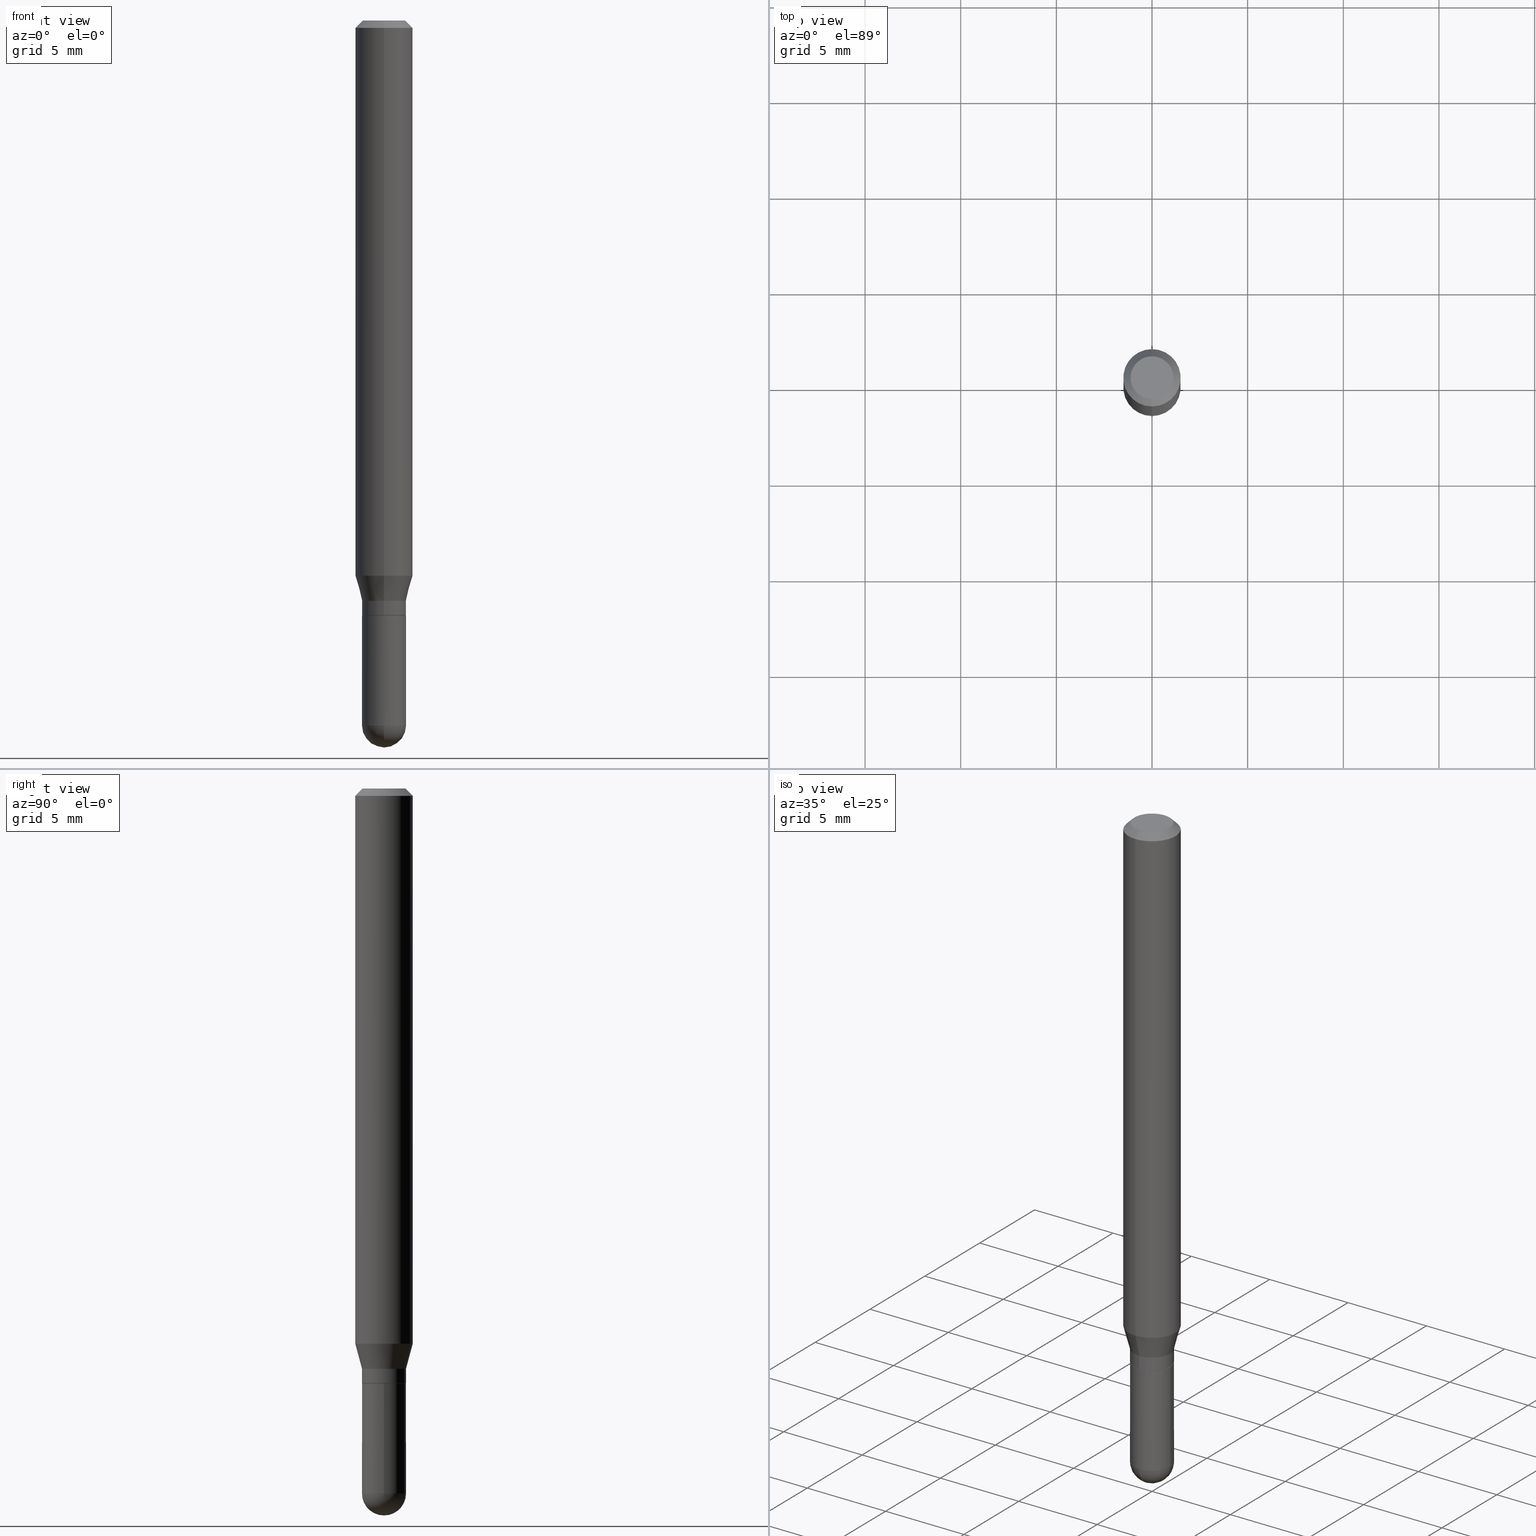
[diagram: canonical four-view strip — front | top / right | iso, engineering-drawing reading convention]
A machine part, canonical four-view strip (front | top / right | iso — engineering-drawing reading convention). The complete STEP part file that produces these views, byte-faithful:
ISO-10303-21;
HEADER;
FILE_DESCRIPTION (( 'STEP AP203' ),
    '1' );
FILE_NAME ('01992.STEP',
    '2024-03-07T19:52:43',
    ( '' ),
    ( '' ),
    'SwSTEP 2.0',
    'SolidWorks 2023',
    '' );
FILE_SCHEMA (( 'CONFIG_CONTROL_DESIGN' ));
ENDSEC;

DATA;
#1 = CONICAL_SURFACE ( 'NONE', #456, 0.05904999999999999832, 0.7853981633974483900 ) ;
#2 = DIRECTION ( 'NONE',  ( -2.445400630016403111E-29, 3.491578970997118229E-15, 1.000000000000000000 ) ) ;
#3 = APPROVAL_STATUS ( 'not_yet_approved' ) ;
#4 = DIRECTION ( 'NONE',  ( -2.445468806185136597E-29, 3.491481338843145583E-15, 1.000000000000000000 ) ) ;
#5 = CYLINDRICAL_SURFACE ( 'NONE', #428, 0.05904999999999999832 ) ;
#6 = PERSON_AND_ORGANIZATION ( #386, #70 ) ;
#7 = EDGE_CURVE ( 'NONE', #460, #216, #26, .T. ) ;
#8 = CARTESIAN_POINT ( 'NONE',  ( 2.992925831077075889E-29, -4.273343502603372230E-15, -1.223899999999999988 ) ) ;
#9 = PRODUCT_DEFINITION ( 'UNKNOWN', '', #458, #511 ) ;
#10 = CARTESIAN_POINT ( 'NONE',  ( 2.794565450606458649E-29, -3.990121635139656722E-15, -1.142784301395928459 ) ) ;
#11 = ORIENTED_EDGE ( 'NONE', *, *, #158, .T. ) ;
#12 = LINE ( 'NONE', #291, #50 ) ;
#13 = EDGE_CURVE ( 'NONE', #295, #216, #162, .T. ) ;
#14 = ORIENTED_EDGE ( 'NONE', *, *, #416, .T. ) ;
#15 = AXIS2_PLACEMENT_3D ( 'NONE', #8, #199, #320 ) ;
#16 = CIRCLE ( 'NONE', #205, 0.04529999999999999999 ) ;
#17 = DIRECTION ( 'NONE',  ( -2.445400630016402831E-29, 3.491578970997118229E-15, 1.000000000000000000 ) ) ;
#18 = EDGE_CURVE ( 'NONE', #465, #371, #159, .T. ) ;
#19 = EDGE_LOOP ( 'NONE', ( #290, #347, #226, #441 ) ) ;
#20 = DIRECTION ( 'NONE',  ( -2.445400630016402831E-29, 3.491578970997118229E-15, 1.000000000000000000 ) ) ;
#21 = EDGE_LOOP ( 'NONE', ( #35, #242, #506, #259 ) ) ;
#22 = DIRECTION ( 'NONE',  ( -6.982962677686265922E-15, -1.000000000000000000, 4.626330217890369336E-15 ) ) ;
#23 = EDGE_LOOP ( 'NONE', ( #264, #292, #11, #322 ) ) ;
#24 = AXIS2_PLACEMENT_3D ( 'NONE', #85, #236, #155 ) ;
#25 = DIRECTION ( 'NONE',  ( -6.982962677686265133E-15, -1.000000000000000000, 3.015284761218829434E-15 ) ) ;
#26 = CIRCLE ( 'NONE', #282, 0.04530000000000006244 ) ;
#27 = AXIS2_PLACEMENT_3D ( 'NONE', #335, #493, #140 ) ;
#28 = EDGE_LOOP ( 'NONE', ( #185, #220, #14, #492 ) ) ;
#29 = APPROVAL_PERSON_ORGANIZATION ( #314, #135, #324 ) ;
#30 = CARTESIAN_POINT ( 'NONE',  ( 3.544012240723413228E-29, -5.070988776393773069E-15, -1.450800000000000090 ) ) ;
#31 = ADVANCED_FACE ( 'NONE', ( #425 ), #105, .T. ) ;
#32 = EDGE_LOOP ( 'NONE', ( #151, #298 ) ) ;
#33 = APPLICATION_CONTEXT ( 'configuration controlled 3d designs of mechanical parts and assemblies' ) ;
#34 = CARTESIAN_POINT ( 'NONE',  ( 3.668100945024610009E-31, -5.237368456495685873E-17, -0.01500000000000002373 ) ) ;
#35 = ORIENTED_EDGE ( 'NONE', *, *, #196, .T. ) ;
#36 = CARTESIAN_POINT ( 'NONE',  ( -0.04530000000000000693, 3.218758592993254334E-16, -2.228277595885472564E-30 ) ) ;
#37 = CONICAL_SURFACE ( 'NONE', #237, 0.05904999999999999832, 0.7853981633974483900 ) ;
#38 = DIRECTION ( 'NONE',  ( -6.982962677686266711E-15, -1.000000000000000000, 3.048937492928865273E-15 ) ) ;
#39 = ADVANCED_FACE ( 'NONE', ( #443 ), #244, .F. ) ;
#40 = CARTESIAN_POINT ( 'NONE',  ( 2.920052892302586962E-29, -4.169294449267658946E-15, -1.194099999999999939 ) ) ;
#41 = CALENDAR_DATE ( 2024, 7, 3 ) ;
#42 = DIRECTION ( 'NONE',  ( 1.000000000000000000, -6.982962677686266711E-15, 4.876176775795936353E-29 ) ) ;
#43 = EDGE_CURVE ( 'NONE', #253, #91, #434, .T. ) ;
#44 = AXIS2_PLACEMENT_3D ( 'NONE', #10, #336, #22 ) ;
#45 = FACE_OUTER_BOUND ( 'NONE', #342, .T. ) ;
#46 = CC_DESIGN_APPROVAL ( #234, ( #108 ) ) ;
#47 = CARTESIAN_POINT ( 'NONE',  ( -3.536586717851222218E-16, -0.04404999999999999888, 1.299461114874193808E-16 ) ) ;
#48 = FACE_OUTER_BOUND ( 'NONE', #270, .T. ) ;
#49 = EDGE_CURVE ( 'NONE', #255, #371, #388, .T. ) ;
#50 = VECTOR ( 'NONE', #296, 39.37007874015748854 ) ;
#51 = DATE_AND_TIME ( #411, #313 ) ;
#52 = DIRECTION ( 'NONE',  ( -2.445400630016403111E-29, 3.491578970997118229E-15, 1.000000000000000000 ) ) ;
#53 = ORIENTED_EDGE ( 'NONE', *, *, #444, .T. ) ;
#54 = DATE_AND_TIME ( #41, #146 ) ;
#55 = ADVANCED_FACE ( 'NONE', ( #240 ), #393, .T. ) ;
#56 = CARTESIAN_POINT ( 'NONE',  ( -3.163282092991882303E-16, -0.04530000000000006244, 1.581685273861696722E-16 ) ) ;
#57 = DIRECTION ( 'NONE',  ( -2.445400630016403111E-29, 3.491578970997118229E-15, 1.000000000000000000 ) ) ;
#58 = EDGE_CURVE ( 'NONE', #109, #295, #480, .T. ) ;
#59 = ORIENTED_EDGE ( 'NONE', *, *, #450, .T. ) ;
#60 = AXIS2_PLACEMENT_3D ( 'NONE', #178, #64, #405 ) ;
#61 = CARTESIAN_POINT ( 'NONE',  ( 0.04530000000000000693, -3.163282092991879344E-16, 2.208908079435559539E-30 ) ) ;
#62 = VERTEX_POINT ( 'NONE', #47 ) ;
#63 = ORIENTED_EDGE ( 'NONE', *, *, #163, .T. ) ;
#64 = DIRECTION ( 'NONE',  ( -2.445400630016403111E-29, 3.491578970997118229E-15, 1.000000000000000000 ) ) ;
#65 = EDGE_LOOP ( 'NONE', ( #385, #399, #73, #404 ) ) ;
#66 = EDGE_CURVE ( 'NONE', #224, #177, #348, .T. ) ;
#67 = AXIS2_PLACEMENT_3D ( 'NONE', #238, #2, #317 ) ;
#68 = FACE_OUTER_BOUND ( 'NONE', #496, .T. ) ;
#69 = ORIENTED_EDGE ( 'NONE', *, *, #43, .T. ) ;
#70 = ORGANIZATION ( 'UNSPECIFIED', 'UNSPECIFIED', '' ) ;
#71 = CARTESIAN_POINT ( 'NONE',  ( 4.195754854663672017E-16, 0.05904999999999994975, -0.01500000000000023016 ) ) ;
#72 = EDGE_CURVE ( 'NONE', #104, #224, #455, .T. ) ;
#73 = ORIENTED_EDGE ( 'NONE', *, *, #251, .T. ) ;
#74 = DIRECTION ( 'NONE',  ( 1.000000000000000000, -6.982962677686266711E-15, 4.876176775795936353E-29 ) ) ;
#75 = EDGE_CURVE ( 'NONE', #216, #460, #330, .T. ) ;
#76 = CARTESIAN_POINT ( 'NONE',  ( 3.547886144013395202E-29, -5.065441126393634337E-15, -1.450799999999999645 ) ) ;
#77 = CARTESIAN_POINT ( 'NONE',  ( -3.163282092991584508E-16, -0.04530000000000435761, -1.223899999999999766 ) ) ;
#78 = AXIS2_PLACEMENT_3D ( 'NONE', #76, #4, #476 ) ;
#79 = CIRCLE ( 'NONE', #106, 0.05904999999999999832 ) ;
#80 = DIRECTION ( 'NONE',  ( -2.445400630016403111E-29, 3.491578970997118229E-15, 1.000000000000000000 ) ) ;
#81 = ADVANCED_FACE ( 'NONE', ( #169 ), #283, .T. ) ;
#82 = MECHANICAL_CONTEXT ( 'NONE', #33, 'mechanical' ) ;
#83 = CC_DESIGN_PERSON_AND_ORGANIZATION_ASSIGNMENT ( #285, #481, ( #9 ) ) ;
#84 = DIRECTION ( 'NONE',  ( 1.000000000000000000, 0.000000000000000000, 0.000000000000000000 ) ) ;
#85 = CARTESIAN_POINT ( 'NONE',  ( 3.544012240723413228E-29, -5.070988776393773069E-15, -1.450800000000000090 ) ) ;
#86 = VECTOR ( 'NONE', #209, 39.37007874015748143 ) ;
#87 = SECURITY_CLASSIFICATION_LEVEL ( 'unclassified' ) ;
#88 = LOCAL_TIME ( 14, 52, 43.00000000000000000, #475 ) ;
#89 = DIRECTION ( 'NONE',  ( -2.445400630016403111E-29, 3.491578970997118229E-15, 1.000000000000000000 ) ) ;
#90 = ADVANCED_FACE ( 'NONE', ( #45 ), #37, .T. ) ;
#91 = VERTEX_POINT ( 'NONE', #467 ) ;
#92 = COORDINATED_UNIVERSAL_TIME_OFFSET ( 5, 0, .BEHIND. ) ;
#93 = CARTESIAN_POINT ( 'NONE',  ( -3.128367279603147534E-16, -0.04480000000000427390, -1.224399999999999711 ) ) ;
#94 = EDGE_LOOP ( 'NONE', ( #415, #63, #333, #344 ) ) ;
#95 = CARTESIAN_POINT ( 'NONE',  ( 0.000000000000000000, 0.000000000000000000, 0.000000000000000000 ) ) ;
#96 = ORIENTED_EDGE ( 'NONE', *, *, #152, .F. ) ;
#97 = VECTOR ( 'NONE', #153, 39.37007874015748854 ) ;
#98 = COORDINATED_UNIVERSAL_TIME_OFFSET ( 5, 0, .BEHIND. ) ;
#99 = PLANE ( 'NONE',  #115 ) ;
#100 = ADVANCED_FACE ( 'NONE', ( #361 ), #5, .T. ) ;
#101 = DIRECTION ( 'NONE',  ( -2.445468806185136597E-29, 3.491481338843145583E-15, 1.000000000000000000 ) ) ;
#102 = ORIENTED_EDGE ( 'NONE', *, *, #215, .F. ) ;
#103 = CARTESIAN_POINT ( 'NONE',  ( 5.834222685010292817E-46, -8.330188922442390789E-32, -2.385794218500368520E-17 ) ) ;
#104 = VERTEX_POINT ( 'NONE', #440 ) ;
#105 = CONICAL_SURFACE ( 'NONE', #400, 0.04479999999999999954, 0.7853981633974739252 ) ;
#106 = AXIS2_PLACEMENT_3D ( 'NONE', #486, #57, #175 ) ;
#107 = CARTESIAN_POINT ( 'NONE',  ( -4.123439461173739834E-16, -0.05904999999999999832, 2.061777382373798353E-16 ) ) ;
#108 = SECURITY_CLASSIFICATION ( '', '', #87 ) ;
#109 = VERTEX_POINT ( 'NONE', #93 ) ;
#110 = CARTESIAN_POINT ( 'NONE',  ( 3.218758592993555581E-16, 0.04529999999999576726, -1.223899999999999988 ) ) ;
#111 = ORIENTED_EDGE ( 'NONE', *, *, #370, .T. ) ;
#112 = DIRECTION ( 'NONE',  ( 6.982962677686265922E-15, 1.000000000000000000, -3.505890868245046092E-15 ) ) ;
#113 = ORIENTED_EDGE ( 'NONE', *, *, #402, .T. ) ;
#114 = DIRECTION ( 'NONE',  ( 1.000000000000000000, -6.982962677686265922E-15, 4.883557194083112340E-29 ) ) ;
#115 = AXIS2_PLACEMENT_3D ( 'NONE', #252, #294, #451 ) ;
#116 = ORIENTED_EDGE ( 'NONE', *, *, #241, .T. ) ;
#117 = CYLINDRICAL_SURFACE ( 'NONE', #464, 0.04530000000000000693 ) ;
#118 = CARTESIAN_POINT ( 'NONE',  ( 2.994148531392083596E-29, -4.275089292088871279E-15, -1.224399999999999933 ) ) ;
#119 = MANIFOLD_SOLID_BREP ( 'Body-Move/Copy2[2]', #265 ) ;
#120 = CARTESIAN_POINT ( 'NONE',  ( 3.218758592993549171E-16, 0.04529999999999589216, -1.194100000000000161 ) ) ;
#121 = DIRECTION ( 'NONE',  ( -6.982962677686265922E-15, -1.000000000000000000, 6.030569522437688845E-15 ) ) ;
#122 = VECTOR ( 'NONE', #20, 39.37007874015748143 ) ;
#123 = DIRECTION ( 'NONE',  ( -2.445468806185136597E-29, 3.491481338843145583E-15, 1.000000000000000000 ) ) ;
#124 =( CONVERSION_BASED_UNIT ( 'INCH', #278 ) LENGTH_UNIT ( ) NAMED_UNIT ( #297 ) );
#125 = CARTESIAN_POINT ( 'NONE',  ( 2.994148531392083596E-29, -4.275089292088871279E-15, -1.224399999999999933 ) ) ;
#126 = APPROVAL_DATE_TIME ( #478, #135 ) ;
#127 = DIRECTION ( 'NONE',  ( -6.982962677686265133E-15, -1.000000000000000000, 3.015284761218829434E-15 ) ) ;
#128 = VECTOR ( 'NONE', #184, 39.37007874015748143 ) ;
#129 = ADVANCED_FACE ( 'NONE', ( #48 ), #340, .T. ) ;
#130 = DIRECTION ( 'NONE',  ( -2.445400630016403111E-29, 3.491578970997118229E-15, 1.000000000000000000 ) ) ;
#131 = ORIENTED_EDGE ( 'NONE', *, *, #145, .T. ) ;
#132 = MANIFOLD_SOLID_BREP ( 'Body-Move/Copy2[1]', #245 ) ;
#133 = DIRECTION ( 'NONE',  ( -6.982962677686266711E-15, -1.000000000000000000, 3.048937492928865273E-15 ) ) ;
#134 = FACE_OUTER_BOUND ( 'NONE', #65, .T. ) ;
#135 = APPROVAL ( #3, 'UNSPECIFIED' ) ;
#136 = ORIENTED_EDGE ( 'NONE', *, *, #66, .T. ) ;
#137 = AXIS2_PLACEMENT_3D ( 'NONE', #302, #431, #42 ) ;
#138 = PERSON_AND_ORGANIZATION ( #386, #70 ) ;
#139 = CARTESIAN_POINT ( 'NONE',  ( -0.04530000000000000693, -4.348329579537264718E-15, -1.450799999999999645 ) ) ;
#140 = DIRECTION ( 'NONE',  ( -6.982962677686265133E-15, -1.000000000000000000, 3.015284761218829434E-15 ) ) ;
#141 = LINE ( 'NONE', #327, #86 ) ;
#142 = ORIENTED_EDGE ( 'NONE', *, *, #18, .T. ) ;
#143 = AXIS2_PLACEMENT_3D ( 'NONE', #268, #276, #310 ) ;
#144 = DIRECTION ( 'NONE',  ( -6.982962677686265922E-15, -1.000000000000000000, 6.030569522437688845E-15 ) ) ;
#145 = EDGE_CURVE ( 'NONE', #371, #465, #79, .T. ) ;
#146 = LOCAL_TIME ( 14, 52, 43.00000000000000000, #391 ) ;
#147 = ORIENTED_EDGE ( 'NONE', *, *, #409, .T. ) ;
#148 = CYLINDRICAL_SURFACE ( 'NONE', #137, 0.04530000000000000693 ) ;
#149 = EDGE_LOOP ( 'NONE', ( #375, #102, #116, #131 ) ) ;
#150 = CARTESIAN_POINT ( 'NONE',  ( 0.04529999999999999999, -4.591297960578735035E-15, -1.224399999999999933 ) ) ;
#151 = ORIENTED_EDGE ( 'NONE', *, *, #58, .F. ) ;
#152 = EDGE_CURVE ( 'NONE', #261, #377, #16, .T. ) ;
#153 = DIRECTION ( 'NONE',  ( 1.839019923739603865E-15, 0.2588190451025254579, 0.9659258262890669799 ) ) ;
#154 = AXIS2_PLACEMENT_3D ( 'NONE', #223, #384, #463 ) ;
#155 = DIRECTION ( 'NONE',  ( 7.105427357600999492E-15, 1.000000000000000000, 0.000000000000000000 ) ) ;
#156 = FACE_OUTER_BOUND ( 'NONE', #303, .T. ) ;
#157 = DIRECTION ( 'NONE',  ( -2.445400630016403111E-29, 3.491578970997118229E-15, 1.000000000000000000 ) ) ;
#158 = EDGE_CURVE ( 'NONE', #460, #247, #219, .T. ) ;
#159 = CIRCLE ( 'NONE', #67, 0.05904999999999999832 ) ;
#160 = CIRCLE ( 'NONE', #60, 0.04479999999999999954 ) ;
#161 =( LENGTH_UNIT ( ) NAMED_UNIT ( * ) SI_UNIT ( $, .METRE. ) );
#162 = LINE ( 'NONE', #437, #319 ) ;
#163 = EDGE_CURVE ( 'NONE', #216, #423, #172, .T. ) ;
#164 = CALENDAR_DATE ( 2024, 7, 3 ) ;
#165 = CARTESIAN_POINT ( 'NONE',  ( 3.668100945024610009E-31, -5.237368456495685873E-17, -0.01500000000000002373 ) ) ;
#166 = PERSON_AND_ORGANIZATION_ROLE ( 'design_owner' ) ;
#167 = DIRECTION ( 'NONE',  ( -2.445400630016403111E-29, 3.491578970997118229E-15, 1.000000000000000000 ) ) ;
#168 = AXIS2_PLACEMENT_3D ( 'NONE', #118, #167, #368 ) ;
#169 = FACE_OUTER_BOUND ( 'NONE', #462, .T. ) ;
#170 = DIRECTION ( 'NONE',  ( -6.982962677686265922E-15, -1.000000000000000000, 4.626330217890369336E-15 ) ) ;
#171 = APPLICATION_CONTEXT ( 'configuration controlled 3d designs of mechanical parts and assemblies' ) ;
#172 = LINE ( 'NONE', #491, #122 ) ;
#173 = EDGE_CURVE ( 'NONE', #295, #109, #160, .T. ) ;
#174 = VECTOR ( 'NONE', #424, 39.37007874015748143 ) ;
#175 = DIRECTION ( 'NONE',  ( -6.982962677686265922E-15, -1.000000000000000000, 3.505890868245046092E-15 ) ) ;
#176 = ADVANCED_BREP_SHAPE_REPRESENTATION ( '01992', ( #132, #119, #334 ), #258 ) ;
#177 = VERTEX_POINT ( 'NONE', #139 ) ;
#178 = CARTESIAN_POINT ( 'NONE',  ( 2.994148531392083596E-29, -4.275089292088871279E-15, -1.224399999999999933 ) ) ;
#179 = EDGE_LOOP ( 'NONE', ( #419, #113, #449, #208 ) ) ;
#180 = SPHERICAL_SURFACE ( 'NONE', #472, 0.04529999999999984039 ) ;
#181 = ORIENTED_EDGE ( 'NONE', *, *, #241, .F. ) ;
#182 = CARTESIAN_POINT ( 'NONE',  ( -4.123439461173460774E-16, -0.05905000000000398819, -1.142784301395928237 ) ) ;
#183 = ORIENTED_EDGE ( 'NONE', *, *, #512, .F. ) ;
#184 = DIRECTION ( 'NONE',  ( -4.851104656540964275E-15, -0.7071067811865500152, -0.7071067811865450192 ) ) ;
#185 = ORIENTED_EDGE ( 'NONE', *, *, #13, .F. ) ;
#186 = ORIENTED_EDGE ( 'NONE', *, *, #251, .F. ) ;
#187 = AXIS2_PLACEMENT_3D ( 'NONE', #95, #89, #308 ) ;
#188 = LINE ( 'NONE', #469, #174 ) ;
#189 = AXIS2_PLACEMENT_3D ( 'NONE', #211, #249, #170 ) ;
#190 = DIRECTION ( 'NONE',  ( -6.982962677686265133E-15, -1.000000000000000000, 3.015284761218829434E-15 ) ) ;
#191 = UNCERTAINTY_MEASURE_WITH_UNIT (LENGTH_MEASURE( 1.000000000000000082E-05 ), #124, 'distance_accuracy_value', 'NONE');
#192 = CALENDAR_DATE ( 2024, 7, 3 ) ;
#193 = DATE_AND_TIME ( #192, #88 ) ;
#194 = ORIENTED_EDGE ( 'NONE', *, *, #72, .T. ) ;
#195 = AXIS2_PLACEMENT_3D ( 'NONE', #204, #365, #326 ) ;
#196 = EDGE_CURVE ( 'NONE', #501, #255, #490, .T. ) ;
#197 = APPROVAL_PERSON_ORGANIZATION ( #318, #421, #397 ) ;
#198 = COORDINATED_UNIVERSAL_TIME_OFFSET ( 5, 0, .BEHIND. ) ;
#199 = DIRECTION ( 'NONE',  ( -2.445400630016403111E-29, 3.491578970997118229E-15, 1.000000000000000000 ) ) ;
#200 = CC_DESIGN_DATE_AND_TIME_ASSIGNMENT ( #54, #494, ( #108 ) ) ;
#201 =( NAMED_UNIT ( * ) SI_UNIT ( $, .STERADIAN. ) SOLID_ANGLE_UNIT ( ) );
#202 = DIRECTION ( 'NONE',  ( 6.982962677686265922E-15, 1.000000000000000000, -3.505890868245046092E-15 ) ) ;
#203 = PERSON_AND_ORGANIZATION ( #386, #70 ) ;
#204 = CARTESIAN_POINT ( 'NONE',  ( 2.920052892302586962E-29, -4.169294449267658946E-15, -1.194099999999999939 ) ) ;
#205 = AXIS2_PLACEMENT_3D ( 'NONE', #414, #459, #329 ) ;
#206 = APPROVAL_DATE_TIME ( #51, #234 ) ;
#207 = DIRECTION ( 'NONE',  ( -2.445400630016402831E-29, 3.491578970997118229E-15, 1.000000000000000000 ) ) ;
#208 = ORIENTED_EDGE ( 'NONE', *, *, #66, .F. ) ;
#209 = DIRECTION ( 'NONE',  ( 4.937700262164548042E-15, 0.7071067811865451302, -0.7071067811865499042 ) ) ;
#210 = ORIENTED_EDGE ( 'NONE', *, *, #325, .T. ) ;
#211 = CARTESIAN_POINT ( 'NONE',  ( 2.794565450606458649E-29, -3.990121635139656722E-15, -1.142784301395928459 ) ) ;
#212 = AXIS2_PLACEMENT_3D ( 'NONE', #398, #401, #273 ) ;
#213 = VECTOR ( 'NONE', #257, 39.37007874015748143 ) ;
#214 = LINE ( 'NONE', #107, #213 ) ;
#215 = EDGE_CURVE ( 'NONE', #239, #62, #284, .T. ) ;
#216 = VERTEX_POINT ( 'NONE', #110 ) ;
#217 = DIRECTION ( 'NONE',  ( -6.982962677686265133E-15, -1.000000000000000000, 3.491578970997118623E-15 ) ) ;
#218 = ORIENTED_EDGE ( 'NONE', *, *, #370, .F. ) ;
#219 = LINE ( 'NONE', #56, #331 ) ;
#220 = ORIENTED_EDGE ( 'NONE', *, *, #173, .T. ) ;
#221 = CIRCLE ( 'NONE', #289, 0.04530000000000006244 ) ;
#222 = EDGE_CURVE ( 'NONE', #255, #501, #277, .T. ) ;
#223 = CARTESIAN_POINT ( 'NONE',  ( 3.544012240723413228E-29, -5.070988776393773069E-15, -1.450800000000000090 ) ) ;
#224 = VERTEX_POINT ( 'NONE', #403 ) ;
#225 = FACE_OUTER_BOUND ( 'NONE', #94, .T. ) ;
#226 = ORIENTED_EDGE ( 'NONE', *, *, #7, .F. ) ;
#227 = CARTESIAN_POINT ( 'NONE',  ( -4.123439461173736383E-16, -0.05905000000000005383, -0.01499999999999981730 ) ) ;
#228 = DIRECTION ( 'NONE',  ( -2.445400630016403111E-29, 3.491578970997118229E-15, 1.000000000000000000 ) ) ;
#229 = CYLINDRICAL_SURFACE ( 'NONE', #379, 0.04530000000000006244 ) ;
#230 = AXIS2_PLACEMENT_3D ( 'NONE', #30, #114, #121 ) ;
#231 = PRODUCT_RELATED_PRODUCT_CATEGORY ( 'detail', '', ( #420 ) ) ;
#232 = DIRECTION ( 'NONE',  ( 1.000000000000000000, -6.982962677686269866E-15, 0.000000000000000000 ) ) ;
#233 = APPROVAL_STATUS ( 'not_yet_approved' ) ;
#234 = APPROVAL ( #243, 'UNSPECIFIED' ) ;
#235 = AXIS2_PLACEMENT_3D ( 'NONE', #125, #433, #38 ) ;
#236 = DIRECTION ( 'NONE',  ( 1.000000000000000000, -7.105427357601001070E-15, 4.926315508542082329E-29 ) ) ;
#237 = AXIS2_PLACEMENT_3D ( 'NONE', #165, #287, #202 ) ;
#238 = CARTESIAN_POINT ( 'NONE',  ( 3.668100945024610009E-31, -5.237368456495685873E-17, -0.01500000000000002373 ) ) ;
#239 = VERTEX_POINT ( 'NONE', #495 ) ;
#240 = FACE_OUTER_BOUND ( 'NONE', #19, .T. ) ;
#241 = EDGE_CURVE ( 'NONE', #239, #371, #141, .T. ) ;
#242 = ORIENTED_EDGE ( 'NONE', *, *, #49, .T. ) ;
#243 = APPROVAL_STATUS ( 'not_yet_approved' ) ;
#244 = PLANE ( 'NONE',  #418 ) ;
#245 = CLOSED_SHELL ( 'NONE', ( #507, #432, #353, #345, #454 ) ) ;
#246 = AXIS2_PLACEMENT_3D ( 'NONE', #461, #504, #304 ) ;
#247 = VERTEX_POINT ( 'NONE', #372 ) ;
#248 = LOCAL_TIME ( 14, 52, 43.00000000000000000, #198 ) ;
#249 = DIRECTION ( 'NONE',  ( -2.445400630016403111E-29, 3.491578970997118229E-15, 1.000000000000000000 ) ) ;
#250 = ORIENTED_EDGE ( 'NONE', *, *, #427, .T. ) ;
#251 = EDGE_CURVE ( 'NONE', #247, #501, #12, .T. ) ;
#252 = CARTESIAN_POINT ( 'NONE',  ( 3.075995059520799729E-16, 0.04404999999999999888, -1.657330247649249040E-16 ) ) ;
#253 = VERTEX_POINT ( 'NONE', #487 ) ;
#254 = CARTESIAN_POINT ( 'NONE',  ( 3.200995024599552074E-16, 0.04479999999999572519, -1.224400000000000155 ) ) ;
#255 = VERTEX_POINT ( 'NONE', #260 ) ;
#256 = AXIS2_PLACEMENT_3D ( 'NONE', #40, #157, #190 ) ;
#257 = DIRECTION ( 'NONE',  ( -2.445400630016402831E-29, 3.491578970997118229E-15, 1.000000000000000000 ) ) ;
#258 =( GEOMETRIC_REPRESENTATION_CONTEXT ( 3 ) GLOBAL_UNCERTAINTY_ASSIGNED_CONTEXT ( ( #191 ) ) GLOBAL_UNIT_ASSIGNED_CONTEXT ( ( #124, #392, #201 ) ) REPRESENTATION_CONTEXT ( 'NONE', 'WORKASPACE' ) );
#259 = ORIENTED_EDGE ( 'NONE', *, *, #332, .F. ) ;
#260 = CARTESIAN_POINT ( 'NONE',  ( 4.195754854663669552E-16, 0.05904999999999600152, -1.142784301395928681 ) ) ;
#261 = VERTEX_POINT ( 'NONE', #369 ) ;
#262 = ADVANCED_FACE ( 'NONE', ( #134 ), #366, .T. ) ;
#263 = DIRECTION ( 'NONE',  ( -6.982962677686265133E-15, -1.000000000000000000, 3.491578970997118229E-15 ) ) ;
#264 = ORIENTED_EDGE ( 'NONE', *, *, #163, .F. ) ;
#265 = CLOSED_SHELL ( 'NONE', ( #363, #55, #90, #100, #129, #262, #81, #357, #272, #39, #31, #470 ) ) ;
#266 = EDGE_CURVE ( 'NONE', #177, #253, #321, .T. ) ;
#267 = VECTOR ( 'NONE', #453, 39.37007874015748143 ) ;
#268 = CARTESIAN_POINT ( 'NONE',  ( 3.163282092992178619E-16, 0.04529999999999572563, -1.224400000000000155 ) ) ;
#269 = PRODUCT_DEFINITION_SHAPE ( 'NONE', 'NONE',  #9 ) ;
#270 = EDGE_LOOP ( 'NONE', ( #305, #59, #452, #186 ) ) ;
#271 = FACE_OUTER_BOUND ( 'NONE', #149, .T. ) ;
#272 = ADVANCED_FACE ( 'NONE', ( #447 ), #99, .F. ) ;
#273 = DIRECTION ( 'NONE',  ( 1.000000000000000000, -6.982962677686269866E-15, 0.000000000000000000 ) ) ;
#274 = LINE ( 'NONE', #346, #128 ) ;
#275 = CC_DESIGN_PERSON_AND_ORGANIZATION_ASSIGNMENT ( #203, #281, ( #458 ) ) ;
#276 = DIRECTION ( 'NONE',  ( 2.438088387897960049E-29, -3.491481338843145188E-15, -1.000000000000000000 ) ) ;
#277 = CIRCLE ( 'NONE', #189, 0.05904999999999999832 ) ;
#278 = LENGTH_MEASURE_WITH_UNIT ( LENGTH_MEASURE( 0.02539999999999999897 ), #161 );
#279 = PERSON_AND_ORGANIZATION ( #386, #70 ) ;
#280 = DIRECTION ( 'NONE',  ( -6.982962677686265922E-15, -1.000000000000000000, 3.491578970997118229E-15 ) ) ;
#281 = PERSON_AND_ORGANIZATION_ROLE ( 'creator' ) ;
#282 = AXIS2_PLACEMENT_3D ( 'NONE', #360, #228, #127 ) ;
#283 = CYLINDRICAL_SURFACE ( 'NONE', #187, 0.05904999999999999832 ) ;
#284 = CIRCLE ( 'NONE', #306, 0.04404999999999999888 ) ;
#285 = PERSON_AND_ORGANIZATION ( #386, #70 ) ;
#286 = DIRECTION ( 'NONE',  ( -6.982962677686265922E-15, -1.000000000000000000, 3.491578970997118229E-15 ) ) ;
#287 = DIRECTION ( 'NONE',  ( 2.445400630016403111E-29, -3.491578970997118229E-15, -1.000000000000000000 ) ) ;
#288 = DIRECTION ( 'NONE',  ( 1.000000000000000000, -6.982962677686269866E-15, 0.000000000000000000 ) ) ;
#289 = AXIS2_PLACEMENT_3D ( 'NONE', #351, #378, #25 ) ;
#290 = ORIENTED_EDGE ( 'NONE', *, *, #58, .T. ) ;
#291 = CARTESIAN_POINT ( 'NONE',  ( -3.163282092991590424E-16, -0.04530000000000422578, -1.194099999999999939 ) ) ;
#292 = ORIENTED_EDGE ( 'NONE', *, *, #75, .T. ) ;
#293 = CC_DESIGN_DATE_AND_TIME_ASSIGNMENT ( #355, #359, ( #9 ) ) ;
#294 = DIRECTION ( 'NONE',  ( 2.445400630016402831E-29, -3.491578970997118229E-15, -1.000000000000000000 ) ) ;
#295 = VERTEX_POINT ( 'NONE', #254 ) ;
#296 = DIRECTION ( 'NONE',  ( -1.807323732225333689E-15, -0.2588190451025186856, 0.9659258262890687563 ) ) ;
#297 = DIMENSIONAL_EXPONENTS ( 1.000000000000000000, 0.000000000000000000, 0.000000000000000000, 0.000000000000000000, 0.000000000000000000, 0.000000000000000000, 0.000000000000000000 ) ;
#298 = ORIENTED_EDGE ( 'NONE', *, *, #173, .F. ) ;
#299 = AXIS2_PLACEMENT_3D ( 'NONE', #352, #123, #232 ) ;
#300 = PLANE ( 'NONE',  #143 ) ;
#301 = ORIENTED_EDGE ( 'NONE', *, *, #215, .T. ) ;
#302 = CARTESIAN_POINT ( 'NONE',  ( 0.000000000000000000, 0.000000000000000000, 0.000000000000000000 ) ) ;
#303 = EDGE_LOOP ( 'NONE', ( #218, #362, #69, #210, #96 ) ) ;
#304 = DIRECTION ( 'NONE',  ( 1.000000000000000000, -6.982962677686271444E-15, 0.000000000000000000 ) ) ;
#305 = ORIENTED_EDGE ( 'NONE', *, *, #477, .T. ) ;
#306 = AXIS2_PLACEMENT_3D ( 'NONE', #103, #374, #217 ) ;
#307 = LINE ( 'NONE', #120, #97 ) ;
#308 = DIRECTION ( 'NONE',  ( -6.982962677686265922E-15, -1.000000000000000000, 3.491578970997118229E-15 ) ) ;
#309 = DIRECTION ( 'NONE',  ( -6.982962677686265133E-15, -1.000000000000000000, 3.491578970997118229E-15 ) ) ;
#310 = DIRECTION ( 'NONE',  ( -1.000000000000000000, 6.982962677686265922E-15, -4.876176775795935793E-29 ) ) ;
#311 = AXIS2_PLACEMENT_3D ( 'NONE', #417, #502, #309 ) ;
#312 = CARTESIAN_POINT ( 'NONE',  ( 0.000000000000000000, 0.000000000000000000, 0.000000000000000000 ) ) ;
#313 = LOCAL_TIME ( 14, 52, 43.00000000000000000, #98 ) ;
#314 = PERSON_AND_ORGANIZATION ( #386, #70 ) ;
#315 = CARTESIAN_POINT ( 'NONE',  ( 4.195754854663390985E-16, 0.05904999999999999832, -2.061777382373798353E-16 ) ) ;
#316 = APPROVAL_DATE_TIME ( #193, #421 ) ;
#317 = DIRECTION ( 'NONE',  ( -6.982962677686265922E-15, -1.000000000000000000, 3.505890868245046092E-15 ) ) ;
#318 = PERSON_AND_ORGANIZATION ( #386, #70 ) ;
#319 = VECTOR ( 'NONE', #395, 39.37007874015748143 ) ;
#320 = DIRECTION ( 'NONE',  ( -6.982962677686265133E-15, -1.000000000000000000, 3.015284761218829434E-15 ) ) ;
#321 = CIRCLE ( 'NONE', #389, 0.04530000000000000693 ) ;
#322 = ORIENTED_EDGE ( 'NONE', *, *, #500, .F. ) ;
#323 = CC_DESIGN_APPROVAL ( #135, ( #458 ) ) ;
#324 = APPROVAL_ROLE ( '' ) ;
#325 = EDGE_CURVE ( 'NONE', #91, #377, #407, .T. ) ;
#326 = DIRECTION ( 'NONE',  ( -6.982962677686265133E-15, -1.000000000000000000, 3.015284761218829434E-15 ) ) ;
#327 = CARTESIAN_POINT ( 'NONE',  ( 4.123439461173743285E-16, 0.05904999999999994975, -0.01500000000000023016 ) ) ;
#328 = ORIENTED_EDGE ( 'NONE', *, *, #152, .T. ) ;
#329 = DIRECTION ( 'NONE',  ( 1.000000000000000000, -6.982962677686271444E-15, 0.000000000000000000 ) ) ;
#330 = CIRCLE ( 'NONE', #15, 0.04530000000000006244 ) ;
#331 = VECTOR ( 'NONE', #17, 39.37007874015748143 ) ;
#332 = EDGE_CURVE ( 'NONE', #501, #465, #214, .T. ) ;
#333 = ORIENTED_EDGE ( 'NONE', *, *, #477, .F. ) ;
#334 = AXIS2_PLACEMENT_3D ( 'NONE', #312, #442, #84 ) ;
#335 = CARTESIAN_POINT ( 'NONE',  ( 2.920052892302586962E-29, -4.169294449267658946E-15, -1.194099999999999939 ) ) ;
#336 = DIRECTION ( 'NONE',  ( -2.445400630016403111E-29, 3.491578970997118229E-15, 1.000000000000000000 ) ) ;
#337 = ORIENTED_EDGE ( 'NONE', *, *, #325, .F. ) ;
#338 = CARTESIAN_POINT ( 'NONE',  ( 3.544012240723413228E-29, -5.070988776393773069E-15, -1.450800000000000090 ) ) ;
#339 = ORIENTED_EDGE ( 'NONE', *, *, #409, .F. ) ;
#340 = CONICAL_SURFACE ( 'NONE', #195, 0.04530000000000006244, 0.2617993877991508511 ) ;
#341 = CARTESIAN_POINT ( 'NONE',  ( 0.000000000000000000, 0.000000000000000000, 0.000000000000000000 ) ) ;
#342 = EDGE_LOOP ( 'NONE', ( #410, #53, #142, #181 ) ) ;
#343 = DIRECTION ( 'NONE',  ( -2.445468806185136877E-29, 3.491481338843145188E-15, 1.000000000000000000 ) ) ;
#344 = ORIENTED_EDGE ( 'NONE', *, *, #158, .F. ) ;
#345 = ADVANCED_FACE ( 'NONE', ( #412 ), #180, .T. ) ;
#346 = CARTESIAN_POINT ( 'NONE',  ( -4.051124067684085231E-16, -0.05905000000000005383, -0.01499999999999981730 ) ) ;
#347 = ORIENTED_EDGE ( 'NONE', *, *, #13, .T. ) ;
#348 = CIRCLE ( 'NONE', #212, 0.04530000000000000693 ) ;
#349 = CIRCLE ( 'NONE', #246, 0.04529999999999999999 ) ;
#350 = CARTESIAN_POINT ( 'NONE',  ( 5.834222685010292817E-46, -8.330188922442390789E-32, -2.385794218500368520E-17 ) ) ;
#351 = CARTESIAN_POINT ( 'NONE',  ( 2.920052892302586962E-29, -4.169294449267658946E-15, -1.194099999999999939 ) ) ;
#352 = CARTESIAN_POINT ( 'NONE',  ( 3.547886144013395202E-29, -5.065441126393634337E-15, -1.450799999999999645 ) ) ;
#353 = ADVANCED_FACE ( 'NONE', ( #376 ), #300, .F. ) ;
#354 = CIRCLE ( 'NONE', #299, 0.04530000000000000693 ) ;
#355 = DATE_AND_TIME ( #439, #248 ) ;
#356 = DIRECTION ( 'NONE',  ( -2.445400630016402831E-29, 3.491578970997118229E-15, 1.000000000000000000 ) ) ;
#357 = ADVANCED_FACE ( 'NONE', ( #271 ), #1, .T. ) ;
#358 = LOCAL_TIME ( 14, 52, 43.00000000000000000, #92 ) ;
#359 = DATE_TIME_ROLE ( 'creation_date' ) ;
#360 = CARTESIAN_POINT ( 'NONE',  ( 2.992925831077075889E-29, -4.273343502603372230E-15, -1.223899999999999988 ) ) ;
#361 = FACE_OUTER_BOUND ( 'NONE', #21, .T. ) ;
#362 = ORIENTED_EDGE ( 'NONE', *, *, #266, .T. ) ;
#363 = ADVANCED_FACE ( 'NONE', ( #225 ), #466, .T. ) ;
#364 = PERSON_AND_ORGANIZATION ( #386, #70 ) ;
#365 = DIRECTION ( 'NONE',  ( -2.445400630016403111E-29, 3.491578970997118229E-15, 1.000000000000000000 ) ) ;
#366 = CONICAL_SURFACE ( 'NONE', #27, 0.04530000000000006244, 0.2617993877991508511 ) ;
#367 = SHAPE_DEFINITION_REPRESENTATION ( #269, #176 ) ;
#368 = DIRECTION ( 'NONE',  ( -6.982962677686266711E-15, -1.000000000000000000, 3.048937492928865273E-15 ) ) ;
#369 = CARTESIAN_POINT ( 'NONE',  ( -0.04529999999999999999, -4.348329579537264718E-15, -1.224399999999999933 ) ) ;
#370 = EDGE_CURVE ( 'NONE', #177, #261, #387, .T. ) ;
#371 = VERTEX_POINT ( 'NONE', #71 ) ;
#372 = CARTESIAN_POINT ( 'NONE',  ( -3.163282092991590424E-16, -0.04530000000000422578, -1.194099999999999939 ) ) ;
#373 = VECTOR ( 'NONE', #343, 39.37007874015748143 ) ;
#374 = DIRECTION ( 'NONE',  ( -2.445400630016403111E-29, 3.491578970997118229E-15, 1.000000000000000000 ) ) ;
#375 = ORIENTED_EDGE ( 'NONE', *, *, #444, .F. ) ;
#376 = FACE_OUTER_BOUND ( 'NONE', #489, .T. ) ;
#377 = VERTEX_POINT ( 'NONE', #150 ) ;
#378 = DIRECTION ( 'NONE',  ( -2.445400630016403111E-29, 3.491578970997118229E-15, 1.000000000000000000 ) ) ;
#379 = AXIS2_PLACEMENT_3D ( 'NONE', #341, #80, #263 ) ;
#380 = ORIENTED_EDGE ( 'NONE', *, *, #402, .F. ) ;
#381 = CARTESIAN_POINT ( 'NONE',  ( 3.707256723828610594E-16, 0.04529999999999589216, -1.194100000000000161 ) ) ;
#382 = APPROVAL_PERSON_ORGANIZATION ( #138, #234, #445 ) ;
#383 = EDGE_LOOP ( 'NONE', ( #136, #111, #339, #337, #484 ) ) ;
#384 = DIRECTION ( 'NONE',  ( -1.000000000000000000, 6.982962677686265922E-15, -4.883557194083112340E-29 ) ) ;
#385 = ORIENTED_EDGE ( 'NONE', *, *, #450, .F. ) ;
#386 = PERSON ( 'UNSPECIFIED', 'UNSPECIFIED', 'UNSPECIFIED', ('UNSPECIFIED'), ('UNSPECIFIED'), ('UNSPECIFIED') ) ;
#387 = LINE ( 'NONE', #36, #373 ) ;
#388 = LINE ( 'NONE', #315, #471 ) ;
#389 = AXIS2_PLACEMENT_3D ( 'NONE', #448, #101, #288 ) ;
#390 = FACE_OUTER_BOUND ( 'NONE', #23, .T. ) ;
#391 = COORDINATED_UNIVERSAL_TIME_OFFSET ( 5, 0, .BEHIND. ) ;
#392 =( NAMED_UNIT ( * ) PLANE_ANGLE_UNIT ( ) SI_UNIT ( $, .RADIAN. ) );
#393 = CONICAL_SURFACE ( 'NONE', #235, 0.04479999999999999954, 0.7853981633974739252 ) ;
#394 = APPLICATION_PROTOCOL_DEFINITION ( 'international standard', 'config_control_design', 1994, #171 ) ;
#395 = DIRECTION ( 'NONE',  ( 5.024295867788190974E-15, 0.7071067811865681119, 0.7071067811865270336 ) ) ;
#396 = CARTESIAN_POINT ( 'NONE',  ( 2.994148531392083596E-29, -4.275089292088871279E-15, -1.224399999999999933 ) ) ;
#397 = APPROVAL_ROLE ( '' ) ;
#398 = CARTESIAN_POINT ( 'NONE',  ( 3.547886144013395202E-29, -5.065441126393634337E-15, -1.450799999999999645 ) ) ;
#399 = ORIENTED_EDGE ( 'NONE', *, *, #500, .T. ) ;
#400 = AXIS2_PLACEMENT_3D ( 'NONE', #479, #52, #133 ) ;
#401 = DIRECTION ( 'NONE',  ( -2.445468806185136597E-29, 3.491481338843145583E-15, 1.000000000000000000 ) ) ;
#402 = EDGE_CURVE ( 'NONE', #104, #253, #408, .T. ) ;
#403 = CARTESIAN_POINT ( 'NONE',  ( 3.218758592993602912E-16, 0.04529999999999485133, -1.450800000000000090 ) ) ;
#404 = ORIENTED_EDGE ( 'NONE', *, *, #222, .F. ) ;
#405 = DIRECTION ( 'NONE',  ( -6.982962677686266711E-15, -1.000000000000000000, 3.048937492928865273E-15 ) ) ;
#406 = ORIENTED_EDGE ( 'NONE', *, *, #222, .T. ) ;
#407 = LINE ( 'NONE', #61, #267 ) ;
#408 = CIRCLE ( 'NONE', #154, 0.04529999999999984039 ) ;
#409 = EDGE_CURVE ( 'NONE', #377, #261, #349, .T. ) ;
#410 = ORIENTED_EDGE ( 'NONE', *, *, #427, .F. ) ;
#411 = CALENDAR_DATE ( 2024, 7, 3 ) ;
#412 = FACE_OUTER_BOUND ( 'NONE', #179, .T. ) ;
#413 = ORIENTED_EDGE ( 'NONE', *, *, #43, .F. ) ;
#414 = CARTESIAN_POINT ( 'NONE',  ( 2.994232006293080857E-29, -4.274969751279546755E-15, -1.224399999999999933 ) ) ;
#415 = ORIENTED_EDGE ( 'NONE', *, *, #7, .T. ) ;
#416 = EDGE_CURVE ( 'NONE', #109, #460, #188, .T. ) ;
#417 = CARTESIAN_POINT ( 'NONE',  ( 0.000000000000000000, 0.000000000000000000, 0.000000000000000000 ) ) ;
#418 = AXIS2_PLACEMENT_3D ( 'NONE', #396, #356, #280 ) ;
#419 = ORIENTED_EDGE ( 'NONE', *, *, #72, .F. ) ;
#420 = PRODUCT ( '01992', '01992', '', ( #82 ) ) ;
#421 = APPROVAL ( #233, 'UNSPECIFIED' ) ;
#422 = DIRECTION ( 'NONE',  ( 2.445400630016403111E-29, -3.491578970997118229E-15, -1.000000000000000000 ) ) ;
#423 = VERTEX_POINT ( 'NONE', #381 ) ;
#424 = DIRECTION ( 'NONE',  ( -4.937700262164674260E-15, -0.7071067811865632269, 0.7071067811865319186 ) ) ;
#425 = FACE_OUTER_BOUND ( 'NONE', #28, .T. ) ;
#426 = CARTESIAN_POINT ( 'NONE',  ( 0.000000000000000000, 0.000000000000000000, 0.000000000000000000 ) ) ;
#427 = EDGE_CURVE ( 'NONE', #62, #239, #435, .T. ) ;
#428 = AXIS2_PLACEMENT_3D ( 'NONE', #482, #130, #286 ) ;
#429 = DIRECTION ( 'NONE',  ( -2.445468806185136597E-29, 3.491481338843145583E-15, 1.000000000000000000 ) ) ;
#430 = CC_DESIGN_PERSON_AND_ORGANIZATION_ASSIGNMENT ( #6, #485, ( #108 ) ) ;
#431 = DIRECTION ( 'NONE',  ( -2.445468806185136597E-29, 3.491481338843145583E-15, 1.000000000000000000 ) ) ;
#432 = ADVANCED_FACE ( 'NONE', ( #68 ), #508, .T. ) ;
#433 = DIRECTION ( 'NONE',  ( -2.445400630016403111E-29, 3.491578970997118229E-15, 1.000000000000000000 ) ) ;
#434 = CIRCLE ( 'NONE', #78, 0.04530000000000000693 ) ;
#435 = CIRCLE ( 'NONE', #505, 0.04404999999999999888 ) ;
#436 = PERSON_AND_ORGANIZATION_ROLE ( 'design_supplier' ) ;
#437 = CARTESIAN_POINT ( 'NONE',  ( 3.183231456205547581E-16, 0.04479999999999572519, -1.224400000000000155 ) ) ;
#438 = EDGE_LOOP ( 'NONE', ( #301, #250 ) ) ;
#439 = CALENDAR_DATE ( 2024, 7, 3 ) ;
#440 = CARTESIAN_POINT ( 'NONE',  ( 3.652855025998608587E-29, -5.231926706043435391E-15, -1.496099999999999985 ) ) ;
#441 = ORIENTED_EDGE ( 'NONE', *, *, #416, .F. ) ;
#442 = DIRECTION ( 'NONE',  ( 0.000000000000000000, 0.000000000000000000, 1.000000000000000000 ) ) ;
#443 = FACE_OUTER_BOUND ( 'NONE', #32, .T. ) ;
#444 = EDGE_CURVE ( 'NONE', #62, #465, #274, .T. ) ;
#445 = APPROVAL_ROLE ( '' ) ;
#446 = CIRCLE ( 'NONE', #256, 0.04530000000000006244 ) ;
#447 = FACE_OUTER_BOUND ( 'NONE', #438, .T. ) ;
#448 = CARTESIAN_POINT ( 'NONE',  ( 3.547886144013395202E-29, -5.065441126393634337E-15, -1.450799999999999645 ) ) ;
#449 = ORIENTED_EDGE ( 'NONE', *, *, #266, .F. ) ;
#450 = EDGE_CURVE ( 'NONE', #423, #255, #307, .T. ) ;
#451 = DIRECTION ( 'NONE',  ( 6.982962677686265922E-15, 1.000000000000000000, -3.491578970997118229E-15 ) ) ;
#452 = ORIENTED_EDGE ( 'NONE', *, *, #196, .F. ) ;
#453 = DIRECTION ( 'NONE',  ( -2.445468806185136877E-29, 3.491481338843145188E-15, 1.000000000000000000 ) ) ;
#454 = ADVANCED_FACE ( 'NONE', ( #156 ), #117, .T. ) ;
#455 = CIRCLE ( 'NONE', #24, 0.04529999999999984039 ) ;
#456 = AXIS2_PLACEMENT_3D ( 'NONE', #34, #422, #112 ) ;
#457 = ORIENTED_EDGE ( 'NONE', *, *, #49, .F. ) ;
#458 = PRODUCT_DEFINITION_FORMATION_WITH_SPECIFIED_SOURCE ( 'ANY', '', #420, .NOT_KNOWN. ) ;
#459 = DIRECTION ( 'NONE',  ( -2.445468806185136597E-29, 3.491481338843145583E-15, 1.000000000000000000 ) ) ;
#460 = VERTEX_POINT ( 'NONE', #77 ) ;
#461 = CARTESIAN_POINT ( 'NONE',  ( 2.994232006293080857E-29, -4.274969751279546755E-15, -1.224399999999999933 ) ) ;
#462 = EDGE_LOOP ( 'NONE', ( #457, #406, #498, #503 ) ) ;
#463 = DIRECTION ( 'NONE',  ( -6.982962677686266711E-15, -1.000000000000000000, 0.000000000000000000 ) ) ;
#464 = AXIS2_PLACEMENT_3D ( 'NONE', #426, #429, #74 ) ;
#465 = VERTEX_POINT ( 'NONE', #227 ) ;
#466 = CYLINDRICAL_SURFACE ( 'NONE', #311, 0.04530000000000006244 ) ;
#467 = CARTESIAN_POINT ( 'NONE',  ( 0.04530000000000000693, -4.986533648135779220E-15, -1.450799999999999645 ) ) ;
#468 = DIRECTION ( 'NONE',  ( -6.982962677686265133E-15, -1.000000000000000000, 3.491578970997118623E-15 ) ) ;
#469 = CARTESIAN_POINT ( 'NONE',  ( -3.128367279603147534E-16, -0.04480000000000427390, -1.224399999999999711 ) ) ;
#470 = ADVANCED_FACE ( 'NONE', ( #390 ), #229, .T. ) ;
#471 = VECTOR ( 'NONE', #207, 39.37007874015748143 ) ;
#472 = AXIS2_PLACEMENT_3D ( 'NONE', #338, #497, #144 ) ;
#473 = APPLICATION_PROTOCOL_DEFINITION ( 'international standard', 'config_control_design', 1994, #33 ) ;
#474 = CC_DESIGN_APPROVAL ( #421, ( #9 ) ) ;
#475 = COORDINATED_UNIVERSAL_TIME_OFFSET ( 5, 0, .BEHIND. ) ;
#476 = DIRECTION ( 'NONE',  ( 1.000000000000000000, -6.982962677686269866E-15, 0.000000000000000000 ) ) ;
#477 = EDGE_CURVE ( 'NONE', #247, #423, #446, .T. ) ;
#478 = DATE_AND_TIME ( #164, #358 ) ;
#479 = CARTESIAN_POINT ( 'NONE',  ( 2.994148531392083596E-29, -4.275089292088871279E-15, -1.224399999999999933 ) ) ;
#480 = CIRCLE ( 'NONE', #168, 0.04479999999999999954 ) ;
#481 = PERSON_AND_ORGANIZATION_ROLE ( 'creator' ) ;
#482 = CARTESIAN_POINT ( 'NONE',  ( 0.000000000000000000, 0.000000000000000000, 0.000000000000000000 ) ) ;
#483 = CC_DESIGN_SECURITY_CLASSIFICATION ( #108, ( #458 ) ) ;
#484 = ORIENTED_EDGE ( 'NONE', *, *, #512, .T. ) ;
#485 = PERSON_AND_ORGANIZATION_ROLE ( 'classification_officer' ) ;
#486 = CARTESIAN_POINT ( 'NONE',  ( 3.668100945024610009E-31, -5.237368456495685873E-17, -0.01500000000000002373 ) ) ;
#487 = CARTESIAN_POINT ( 'NONE',  ( -3.163282092991518934E-16, -0.04530000000000499599, -1.450799999999999423 ) ) ;
#488 = CC_DESIGN_PERSON_AND_ORGANIZATION_ASSIGNMENT ( #279, #166, ( #420 ) ) ;
#489 = EDGE_LOOP ( 'NONE', ( #147, #328 ) ) ;
#490 = CIRCLE ( 'NONE', #44, 0.05904999999999999832 ) ;
#491 = CARTESIAN_POINT ( 'NONE',  ( 3.218758592993257292E-16, 0.04530000000000006244, -1.581685273861696722E-16 ) ) ;
#492 = ORIENTED_EDGE ( 'NONE', *, *, #75, .F. ) ;
#493 = DIRECTION ( 'NONE',  ( -2.445400630016403111E-29, 3.491578970997118229E-15, 1.000000000000000000 ) ) ;
#494 = DATE_TIME_ROLE ( 'classification_date' ) ;
#495 = CARTESIAN_POINT ( 'NONE',  ( 3.599717260347271507E-16, 0.04404999999999999888, -1.776619958574267450E-16 ) ) ;
#496 = EDGE_LOOP ( 'NONE', ( #380, #194, #183, #413 ) ) ;
#497 = DIRECTION ( 'NONE',  ( 1.000000000000000000, -6.982962677686265922E-15, 4.883557194083112340E-29 ) ) ;
#498 = ORIENTED_EDGE ( 'NONE', *, *, #332, .T. ) ;
#499 = FACE_OUTER_BOUND ( 'NONE', #383, .T. ) ;
#500 = EDGE_CURVE ( 'NONE', #423, #247, #221, .T. ) ;
#501 = VERTEX_POINT ( 'NONE', #182 ) ;
#502 = DIRECTION ( 'NONE',  ( -2.445400630016403111E-29, 3.491578970997118229E-15, 1.000000000000000000 ) ) ;
#503 = ORIENTED_EDGE ( 'NONE', *, *, #145, .F. ) ;
#504 = DIRECTION ( 'NONE',  ( -2.445468806185136597E-29, 3.491481338843145583E-15, 1.000000000000000000 ) ) ;
#505 = AXIS2_PLACEMENT_3D ( 'NONE', #350, #510, #468 ) ;
#506 = ORIENTED_EDGE ( 'NONE', *, *, #18, .F. ) ;
#507 = ADVANCED_FACE ( 'NONE', ( #499 ), #148, .T. ) ;
#508 = SPHERICAL_SURFACE ( 'NONE', #230, 0.04529999999999984039 ) ;
#509 = CC_DESIGN_PERSON_AND_ORGANIZATION_ASSIGNMENT ( #364, #436, ( #458 ) ) ;
#510 = DIRECTION ( 'NONE',  ( -2.445400630016403111E-29, 3.491578970997118229E-15, 1.000000000000000000 ) ) ;
#511 = DESIGN_CONTEXT ( 'detailed design', #171, 'design' ) ;
#512 = EDGE_CURVE ( 'NONE', #91, #224, #354, .T. ) ;
ENDSEC;
END-ISO-10303-21;
